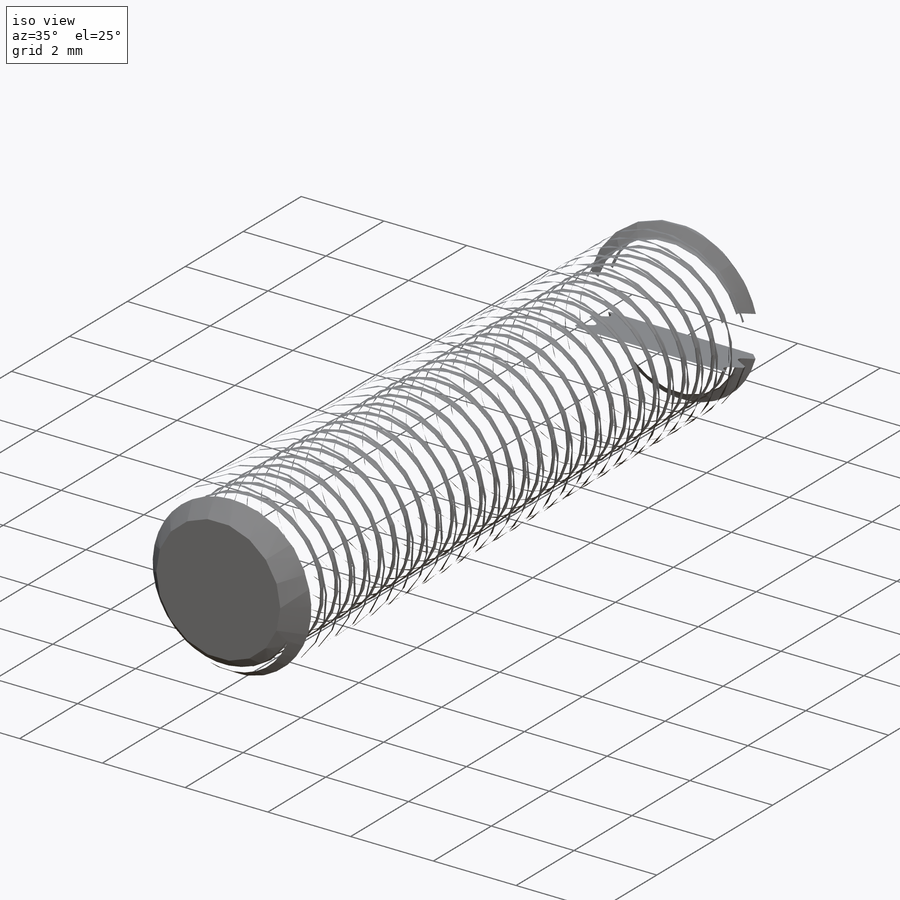
[diagram: iso view]
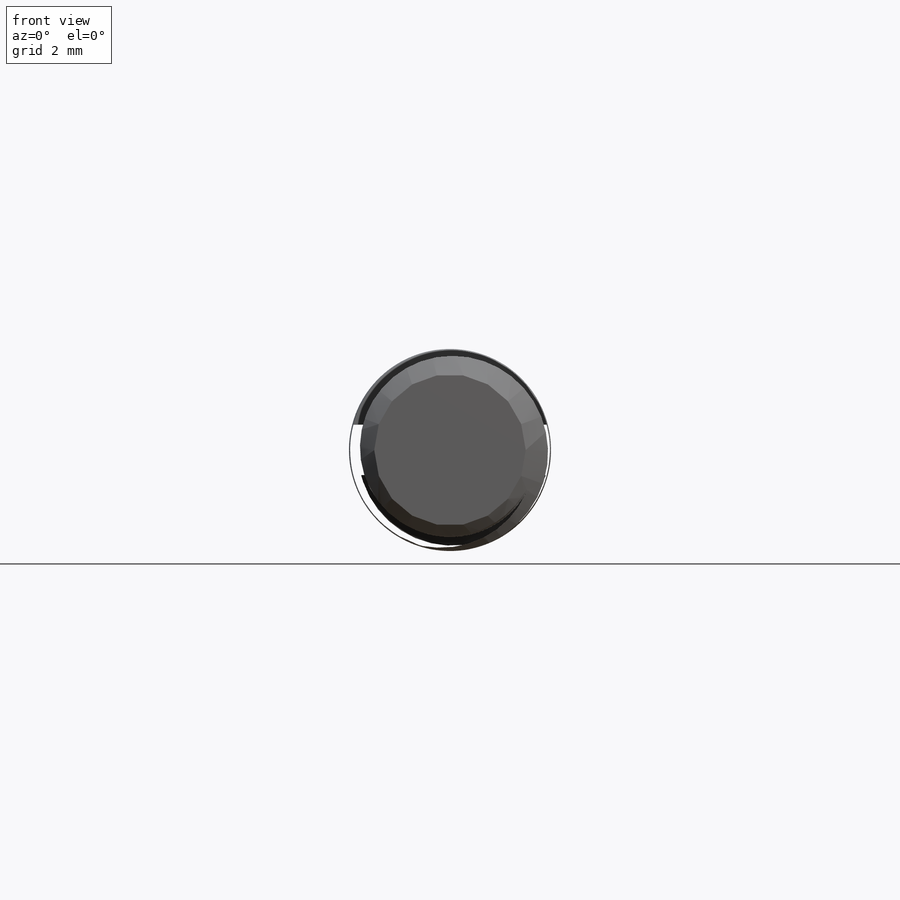
[diagram: front view]
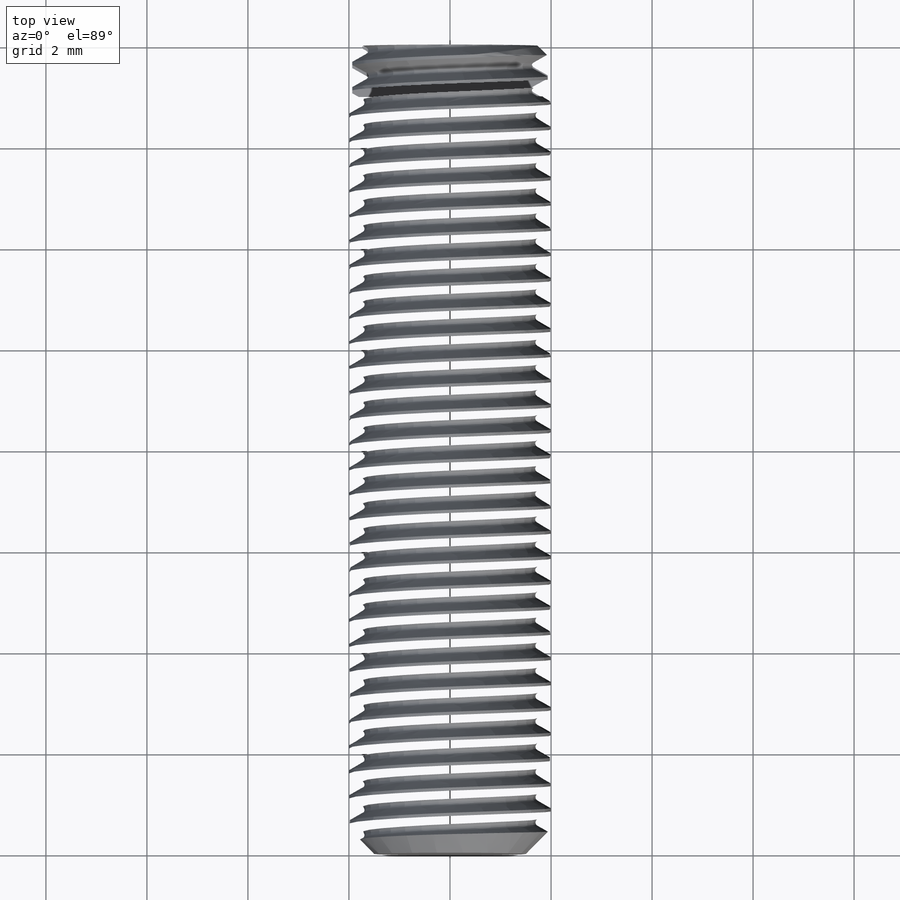
[diagram: top view]
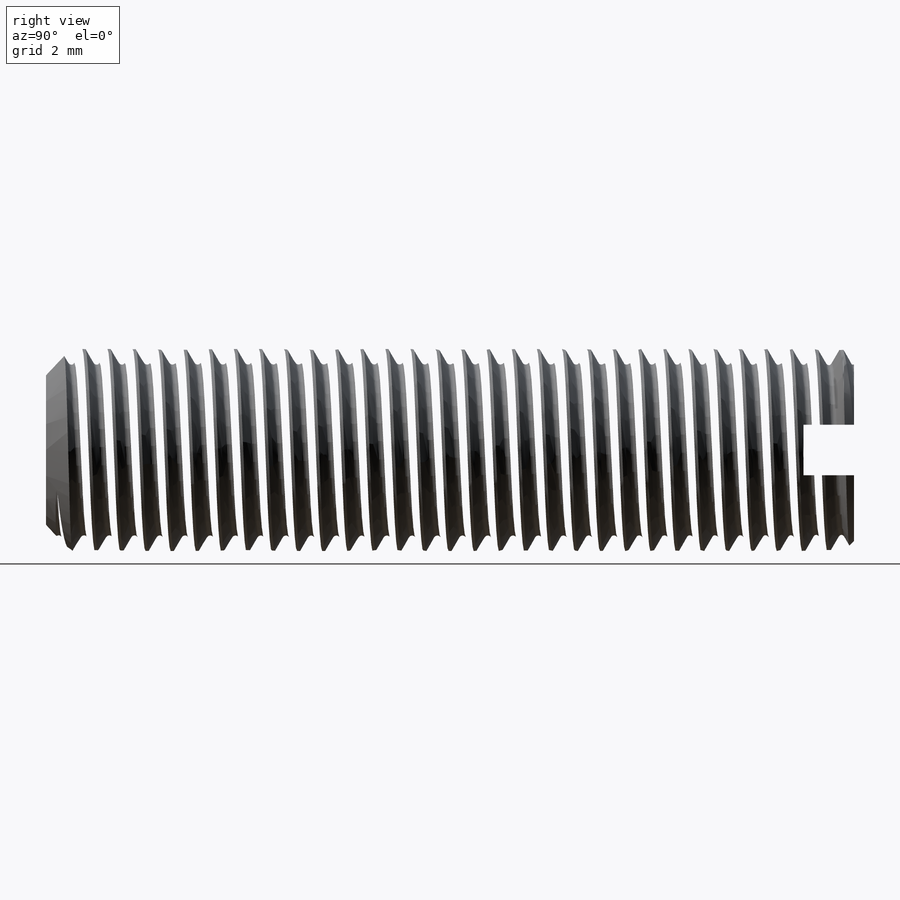
[diagram: right view]
SOLIDWORKS PART (.sldprt)
format: sldprt  version: not decoded by parser v0  size: 1,049,088 bytes
history: native  units: mm
features: plane x5, sketch x5, chamfer x2, material x1, extrude x1, cut_extrude x1, helix x1, sweep x1 (+8 scaffold rows collapsed)
feature tree (25):
  scaffold x8  (default folders/planes/origin — collapsed)
  material  "Matériau <non spécifié>"
  plane  "Plan de face"
  plane  "Plan de dessus"
  plane  "Plan de droite"
  sketch  "Esquisse1"  dims[D1=4.0mm]
  extrude  "Boss.-Extru.1"  Depth=16mm
  chamfer  "Chanfrein1"  Distance=0.5mm Angle=45deg
  sketch  "Esquisse2"  dims[c1.D1=4.0mm c1.D3=1.0mm c2.D1=0.5mm c2.D2=0.5mm]
  cut_extrude  "Enlèv. mat.-Extru.1"  Depth=1mm
  chamfer  "Chanfrein2"  Distance=0.2mm Angle=45deg
  sketch  "Dépose"  dims[(d arbre)=4.0mm]
  plane  "Normal amont"  Offset=20mm L filetée=20mm
  sketch  "Hélice"  dims[c1.d nominal=4.0mm c1.Nbre de filets=1.0mm c1.pas=2.0mm c2.Nbre de filets=1.0mm c2.pas=0.5mm]
  plane  "Radial"
  sketch  "Profil filet M"  dims[a=0.25mm R1=0.3mm R congé=~0.07215mm demi-pas=1.5mm D3=~1.287546mm A° sommet=60.0deg quart de pas=0.75mm profondeur filet=1.75mm p=0.1732mm H1=1.0824mm 7H/8=~0.378875mm D1=~1.272942mm]
  helix  "Hélice/Spirale2"  Pitch=25mm
  sweep  "Enlèvement de matière-Balayage2"
decode coverage: 10 of 11 modeling features carry decoded parameters
note: ~ marks probable driven/reference dimensions
note: suppression state not decoded; provenance and decode notes live in map.json
